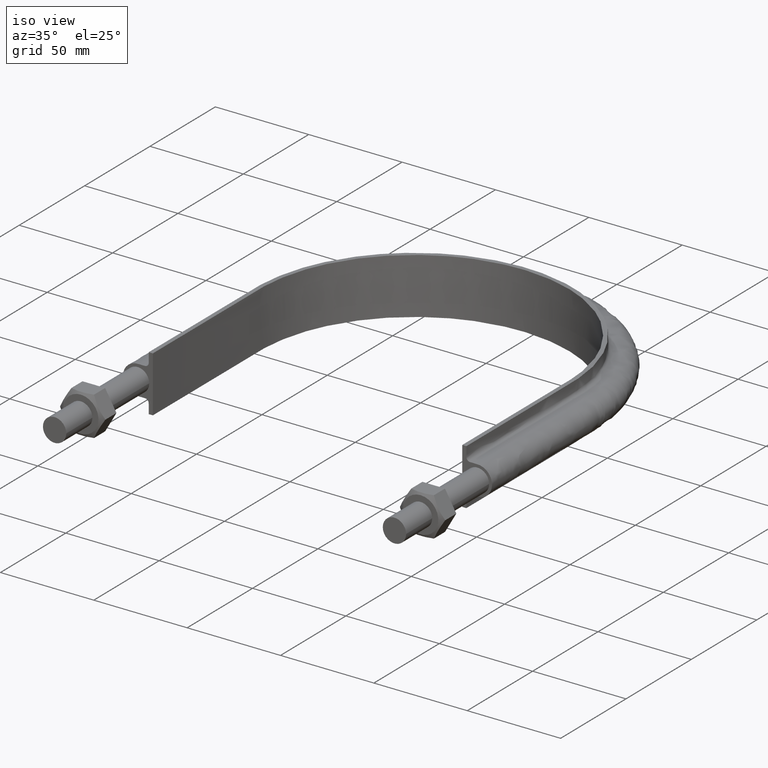
[diagram: clean part render]
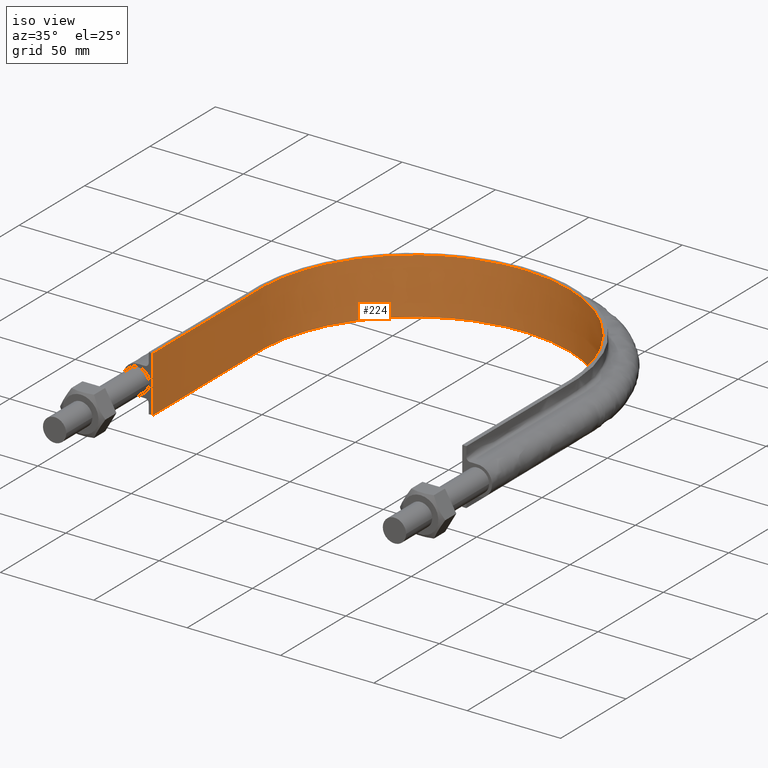
[diagram: same view with one face highlighted and labeled with its STEP entity id]
A machine part, iso view. The second image highlights one B-rep face of the part: STEP entity #224.
In plain terms, the highlighted face is a SurfaceOfExtrusion surface.
Its self-contained STEP definition (entity closure, byte-faithful):
#224 = ADVANCED_FACE( '', ( #270 ), #271, .T. );
#270 = FACE_OUTER_BOUND( '', #892, .T. );
#271 = SURFACE_OF_LINEAR_EXTRUSION( '', #893, #894 );
#892 = EDGE_LOOP( '', ( #1383, #1384, #1385, #1386 ) );
#893 = B_SPLINE_CURVE_WITH_KNOTS( '', 3, ( #1387, #1388, #1389, #1390, #1391, #1392, #1393, #1394, #1395, #1396, #1397, #1398, #1399, #1400, #1401, #1402, #1403 ), .UNSPECIFIED., .F., .F., ( 4, 3, 1, 1, 1, 1, 1, 1, 1, 3, 4 ), ( -10.0000000000000, -9.00000000000000, -8.00000000000000, -7.00000000000000, -6.00000000000000, -5.00000000000000, -4.00000000000000, -3.00000000000000, -2.00000000000000, -1.00000000000000, 0.000000000000000 ), .UNSPECIFIED. );
#894 = VECTOR( '', #1404, 1000.00000000000 );
#1383 = ORIENTED_EDGE( '', *, *, #1614, .F. );
#1384 = ORIENTED_EDGE( '', *, *, #1601, .F. );
#1385 = ORIENTED_EDGE( '', *, *, #1611, .T. );
#1386 = ORIENTED_EDGE( '', *, *, #1606, .T. );
#1387 = CARTESIAN_POINT( '', ( -82.8500000000000, 63.5000000000001, -278.469308654335 ) );
#1388 = CARTESIAN_POINT( '', ( -82.8500000000000, 90.7166666666667, -278.469308654335 ) );
#1389 = CARTESIAN_POINT( '', ( -82.8500000000000, 117.933333333333, -278.469308654335 ) );
#1390 = CARTESIAN_POINT( '', ( -82.8500000000000, 145.150000000000, -278.469308654335 ) );
#1391 = CARTESIAN_POINT( '', ( -82.8500000000000, 155.979512005492, -278.469308654335 ) );
#1392 = CARTESIAN_POINT( '', ( -78.5361555605724, 177.687272457852, -278.469308654335 ) );
#1393 = CARTESIAN_POINT( '', ( -60.1089711493570, 205.257212617967, -278.469308654335 ) );
#1394 = CARTESIAN_POINT( '', ( -32.5307407698323, 223.686657998112, -278.469308654335 ) );
#1395 = CARTESIAN_POINT( '', ( 5.59407077838651E-014, 230.156671000944, -278.469308654335 ) );
#1396 = CARTESIAN_POINT( '', ( 32.5307407698323, 223.686657998112, -278.469308654335 ) );
#1397 = CARTESIAN_POINT( '', ( 60.1089711493571, 205.257212617967, -278.469308654335 ) );
#1398 = CARTESIAN_POINT( '', ( 78.5361555605725, 177.687272457852, -278.469308654335 ) );
#1399 = CARTESIAN_POINT( '', ( 82.8500000000000, 155.979512005492, -278.469308654335 ) );
#1400 = CARTESIAN_POINT( '', ( 82.8500000000000, 145.150000000000, -278.469308654335 ) );
#1401 = CARTESIAN_POINT( '', ( 82.8500000000000, 117.933333333333, -278.469308654335 ) );
#1402 = CARTESIAN_POINT( '', ( 82.8500000000000, 90.7166666666667, -278.469308654335 ) );
#1403 = CARTESIAN_POINT( '', ( 82.8500000000000, 63.5000000000000, -278.469308654335 ) );
#1404 = DIRECTION( '', ( 0.000000000000000, 0.000000000000000, 1.00000000000000 ) );
#1601 = EDGE_CURVE( '', #1667, #1668, #1669, .T. );
#1606 = EDGE_CURVE( '', #1677, #1678, #1679, .T. );
#1611 = EDGE_CURVE( '', #1667, #1677, #1687, .T. );
#1614 = EDGE_CURVE( '', #1668, #1678, #1690, .T. );
#1667 = VERTEX_POINT( '', #1783 );
#1668 = VERTEX_POINT( '', #1784 );
#1669 = LINE( '', #1785, #1786 );
#1677 = VERTEX_POINT( '', #1836 );
#1678 = VERTEX_POINT( '', #1837 );
#1679 = LINE( '', #1838, #1839 );
#1687 = B_SPLINE_CURVE_WITH_KNOTS( '', 3, ( #1889, #1890, #1891, #1892, #1893, #1894, #1895, #1896, #1897, #1898, #1899, #1900, #1901, #1902, #1903, #1904, #1905 ), .UNSPECIFIED., .F., .F., ( 4, 3, 1, 1, 1, 1, 1, 1, 1, 3, 4 ), ( -10.0000000000000, -9.00000000000000, -8.00000000000000, -7.00000000000000, -6.00000000000000, -5.00000000000000, -4.00000000000000, -3.00000000000000, -2.00000000000000, -1.00000000000000, 0.000000000000000 ), .UNSPECIFIED. );
#1690 = B_SPLINE_CURVE_WITH_KNOTS( '', 3, ( #1940, #1941, #1942, #1943, #1944, #1945, #1946, #1947, #1948, #1949, #1950, #1951, #1952, #1953, #1954, #1955, #1956 ), .UNSPECIFIED., .F., .F., ( 4, 3, 1, 1, 1, 1, 1, 1, 1, 3, 4 ), ( -10.0000000000000, -9.00000000000000, -8.00000000000000, -7.00000000000000, -6.00000000000000, -5.00000000000000, -4.00000000000000, -3.00000000000000, -2.00000000000000, -1.00000000000000, 0.000000000000000 ), .UNSPECIFIED. );
#1783 = CARTESIAN_POINT( '', ( -82.8499999999999, 63.5000000000003, -15.0000000000000 ) );
#1784 = CARTESIAN_POINT( '', ( -82.8499999999999, 63.5000000000003, 15.0000000000000 ) );
#1785 = CARTESIAN_POINT( '', ( -82.8500000000000, 63.5000000000001, -278.469308654335 ) );
#1786 = VECTOR( '', #2225, 1000.00000000000 );
#1836 = CARTESIAN_POINT( '', ( 82.8500000000000, 63.5000000000000, -15.0000000000000 ) );
#1837 = CARTESIAN_POINT( '', ( 82.8500000000002, 63.5000000000003, 15.0000000000000 ) );
#1838 = CARTESIAN_POINT( '', ( 82.8500000000000, 63.5000000000000, -278.469308654335 ) );
#1839 = VECTOR( '', #2228, 1000.00000000000 );
#1889 = CARTESIAN_POINT( '', ( -82.8500000000000, 63.5000000000001, -15.0000000000000 ) );
#1890 = CARTESIAN_POINT( '', ( -82.8500000000000, 90.7166666666667, -15.0000000000000 ) );
#1891 = CARTESIAN_POINT( '', ( -82.8500000000000, 117.933333333333, -15.0000000000000 ) );
#1892 = CARTESIAN_POINT( '', ( -82.8500000000000, 145.150000000000, -15.0000000000000 ) );
#1893 = CARTESIAN_POINT( '', ( -82.8500000000000, 155.979512005492, -15.0000000000000 ) );
#1894 = CARTESIAN_POINT( '', ( -78.5361555605724, 177.687272457852, -15.0000000000000 ) );
#1895 = CARTESIAN_POINT( '', ( -60.1089711493570, 205.257212617967, -15.0000000000000 ) );
#1896 = CARTESIAN_POINT( '', ( -32.5307407698323, 223.686657998112, -15.0000000000000 ) );
#1897 = CARTESIAN_POINT( '', ( 5.59407077838651E-014, 230.156671000944, -15.0000000000000 ) );
#1898 = CARTESIAN_POINT( '', ( 32.5307407698323, 223.686657998112, -15.0000000000000 ) );
#1899 = CARTESIAN_POINT( '', ( 60.1089711493571, 205.257212617967, -15.0000000000000 ) );
#1900 = CARTESIAN_POINT( '', ( 78.5361555605725, 177.687272457852, -15.0000000000000 ) );
#1901 = CARTESIAN_POINT( '', ( 82.8500000000000, 155.979512005492, -15.0000000000000 ) );
#1902 = CARTESIAN_POINT( '', ( 82.8500000000000, 145.150000000000, -15.0000000000000 ) );
#1903 = CARTESIAN_POINT( '', ( 82.8500000000000, 117.933333333333, -15.0000000000000 ) );
#1904 = CARTESIAN_POINT( '', ( 82.8500000000000, 90.7166666666667, -15.0000000000000 ) );
#1905 = CARTESIAN_POINT( '', ( 82.8500000000000, 63.5000000000000, -15.0000000000000 ) );
#1940 = CARTESIAN_POINT( '', ( -82.8500000000000, 63.5000000000001, 15.0000000000000 ) );
#1941 = CARTESIAN_POINT( '', ( -82.8500000000000, 90.7166666666667, 15.0000000000000 ) );
#1942 = CARTESIAN_POINT( '', ( -82.8500000000000, 117.933333333333, 15.0000000000000 ) );
#1943 = CARTESIAN_POINT( '', ( -82.8500000000000, 145.150000000000, 15.0000000000000 ) );
#1944 = CARTESIAN_POINT( '', ( -82.8500000000000, 155.979512005492, 15.0000000000000 ) );
#1945 = CARTESIAN_POINT( '', ( -78.5361555605724, 177.687272457852, 15.0000000000000 ) );
#1946 = CARTESIAN_POINT( '', ( -60.1089711493570, 205.257212617967, 15.0000000000000 ) );
#1947 = CARTESIAN_POINT( '', ( -32.5307407698323, 223.686657998112, 15.0000000000000 ) );
#1948 = CARTESIAN_POINT( '', ( 5.59407077838651E-014, 230.156671000944, 15.0000000000000 ) );
#1949 = CARTESIAN_POINT( '', ( 32.5307407698323, 223.686657998112, 15.0000000000000 ) );
#1950 = CARTESIAN_POINT( '', ( 60.1089711493571, 205.257212617967, 15.0000000000000 ) );
#1951 = CARTESIAN_POINT( '', ( 78.5361555605725, 177.687272457852, 15.0000000000000 ) );
#1952 = CARTESIAN_POINT( '', ( 82.8500000000000, 155.979512005492, 15.0000000000000 ) );
#1953 = CARTESIAN_POINT( '', ( 82.8500000000000, 145.150000000000, 15.0000000000000 ) );
#1954 = CARTESIAN_POINT( '', ( 82.8500000000000, 117.933333333333, 15.0000000000000 ) );
#1955 = CARTESIAN_POINT( '', ( 82.8500000000000, 90.7166666666667, 15.0000000000000 ) );
#1956 = CARTESIAN_POINT( '', ( 82.8500000000000, 63.5000000000000, 15.0000000000000 ) );
#2225 = DIRECTION( '', ( 0.000000000000000, 0.000000000000000, 1.00000000000000 ) );
#2228 = DIRECTION( '', ( 0.000000000000000, 0.000000000000000, 1.00000000000000 ) );